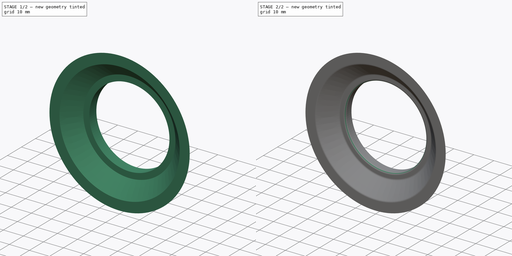
[diagram: build sequence overview — one tinted view per stage of 2, left to right]
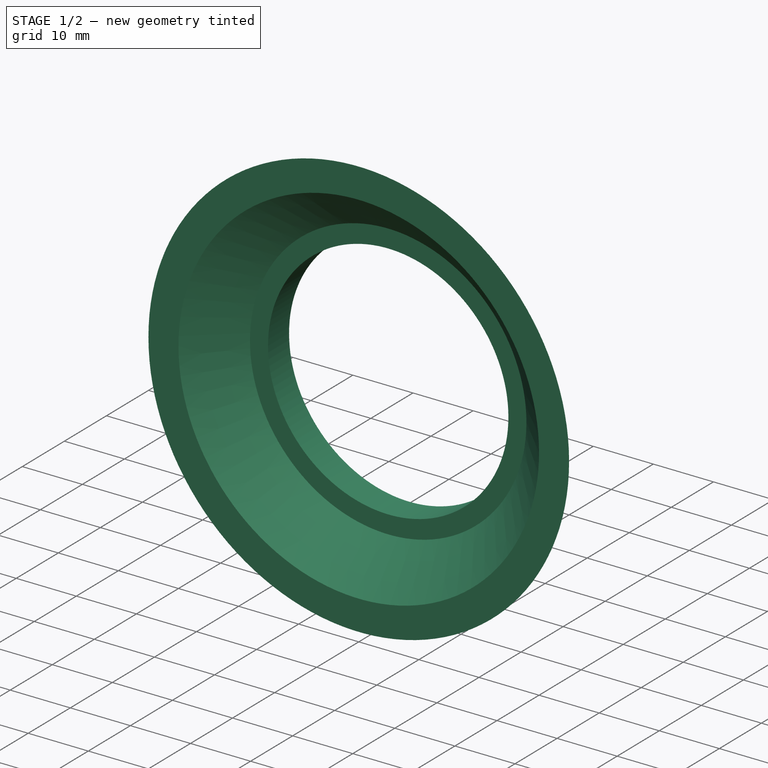
[diagram: stage 1 of 2 — iso view after this stage's code; geometry added in this stage tinted green]
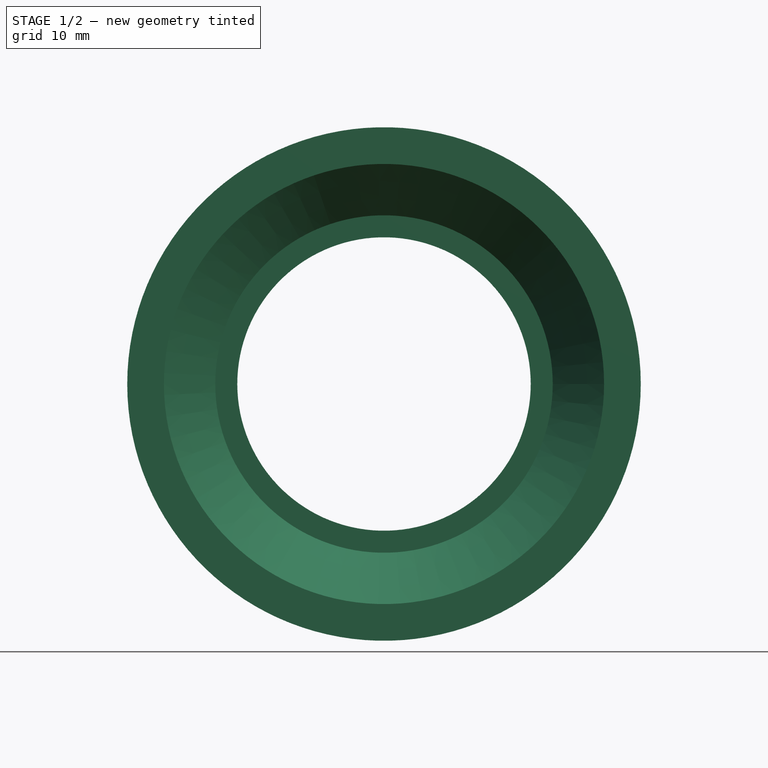
[diagram: stage 1 of 2 — front view after this stage's code; geometry added in this stage tinted green]
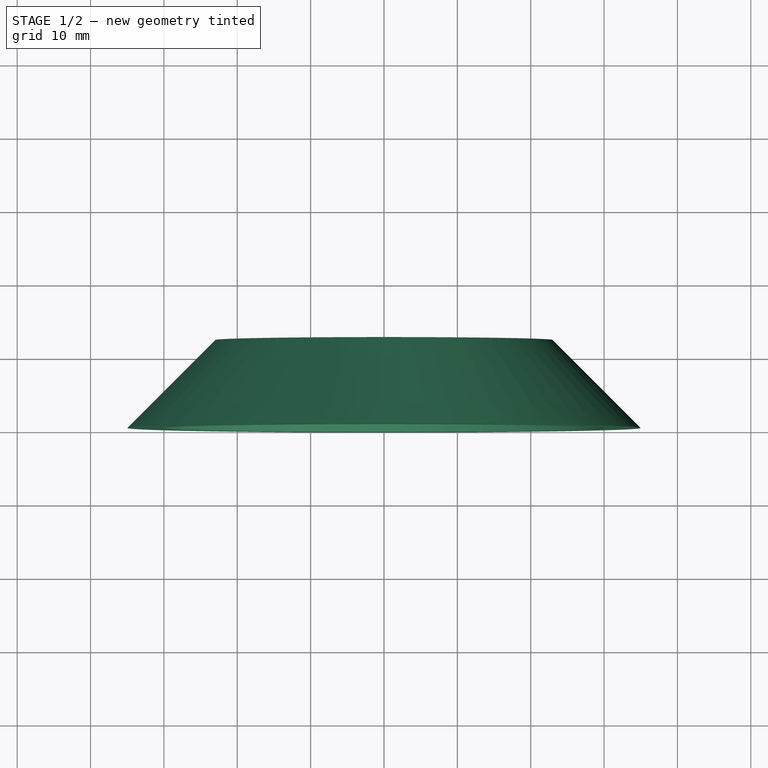
[diagram: stage 1 of 2 — top view after this stage's code; geometry added in this stage tinted green]
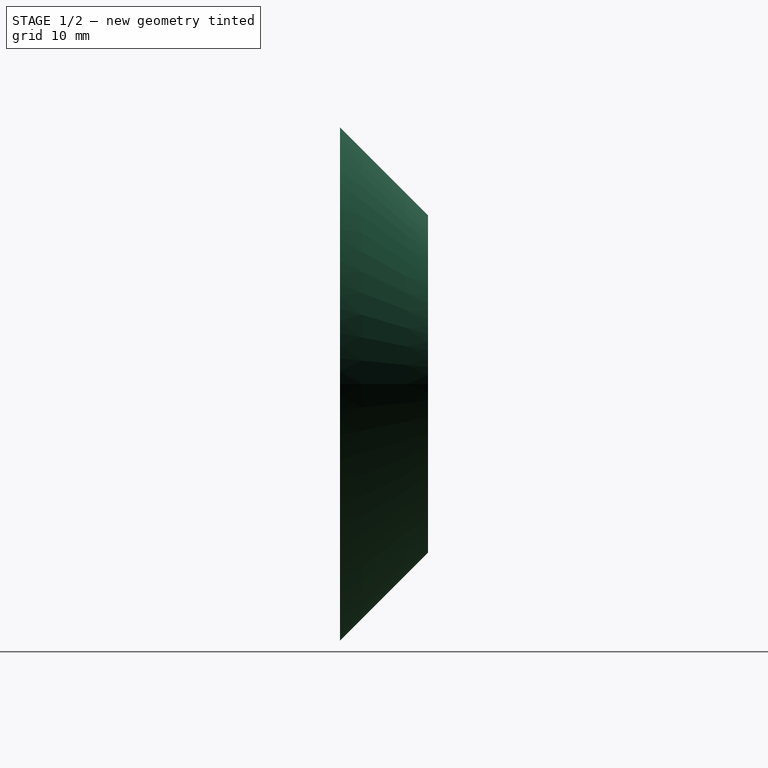
[diagram: stage 1 of 2 — right view after this stage's code; geometry added in this stage tinted green]
FCSTD DOCUMENT  (FreeCAD 0.16RUnknown)
Label: rain_cover_tube
License: All rights reserved
LicenseURL: http://en.wikipedia.org/wiki/All_rights_reserved
objects: Sketcher::SketchObject×1, PartDesign::Revolution×1, PartDesign::Fillet×1
note: 4 computed .brp shape members not serialized (recipe doc carries the construction recipe); baked Part::Feature solids carry a one-line shape summary decoded from their .brp

FEATURE [Sketcher::SketchObject] Sketch
  sketch-geometry (6):
    g0: LineSegment StartX=20 StartY=7 StartZ=0 EndX=23 EndY=7 EndZ=0
    g1: LineSegment StartX=23 StartY=7 StartZ=0 EndX=30 EndY=0 EndZ=0
    g2: LineSegment StartX=35 StartY=0 StartZ=0 EndX=23 EndY=12 EndZ=0
    g3: LineSegment StartX=23 StartY=12 StartZ=0 EndX=20 EndY=12 EndZ=0
    g4: LineSegment StartX=20 StartY=12 StartZ=0 EndX=20 EndY=7 EndZ=0
    g5: LineSegment StartX=35 StartY=0 StartZ=0 EndX=30 EndY=0 EndZ=0
  constraints (18):
    c: Horizontal(g0)
    c: Coincident(g0,g1)
    c: Coincident(g2,g3)
    c: Horizontal(g3)
    c: Coincident(g3,g4)
    c: Coincident(g4,g0)
    c: Vertical(g4)
    c: Parallel(g1,g2)
    c: DistanceX(g-1,g3) = 20
    c: Angle(g3,g2) = 2.35619
    c: DistanceY(g4,g4) = 5
    c: DistanceY(g-1,g3) = 12
    c: Coincident(g5,g2)
    c: Coincident(g5,g1)
    c: Horizontal(g5)
    c: DistanceX(g5,g5) = 5
    c: PointOnObject(g2,g-1)
    c: DistanceX(g-1,g2) = 35
FEATURE [PartDesign::Revolution] Revolution
  Angle = 360
  Axis = (0,1,0)
  Base = (0,0,0)
  ReferenceAxis = -> Sketch [V_Axis]
  Reversed = true
  Sketch = -> Sketch
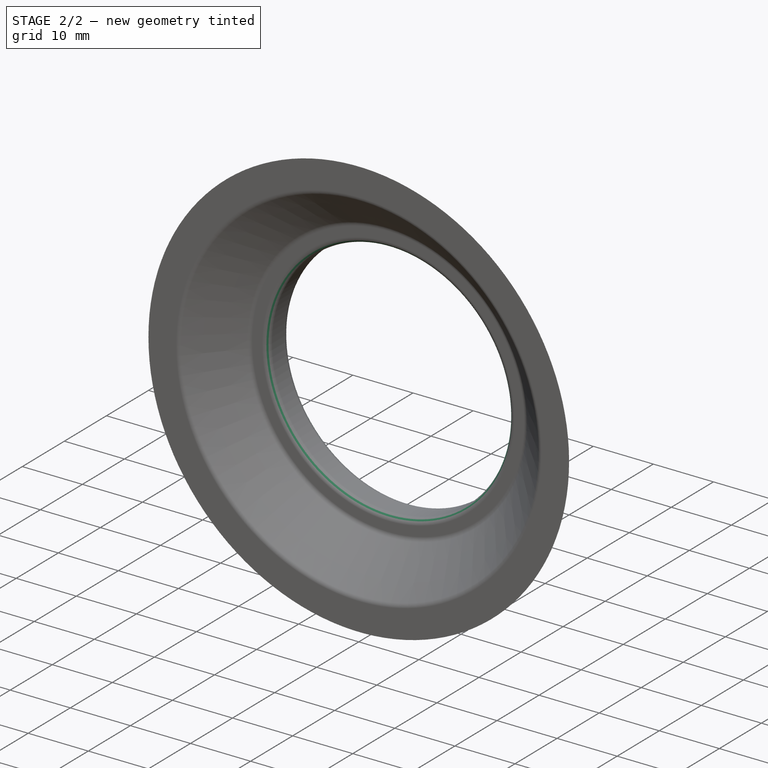
[diagram: stage 2 of 2 — iso view after this stage's code; geometry added in this stage tinted green]
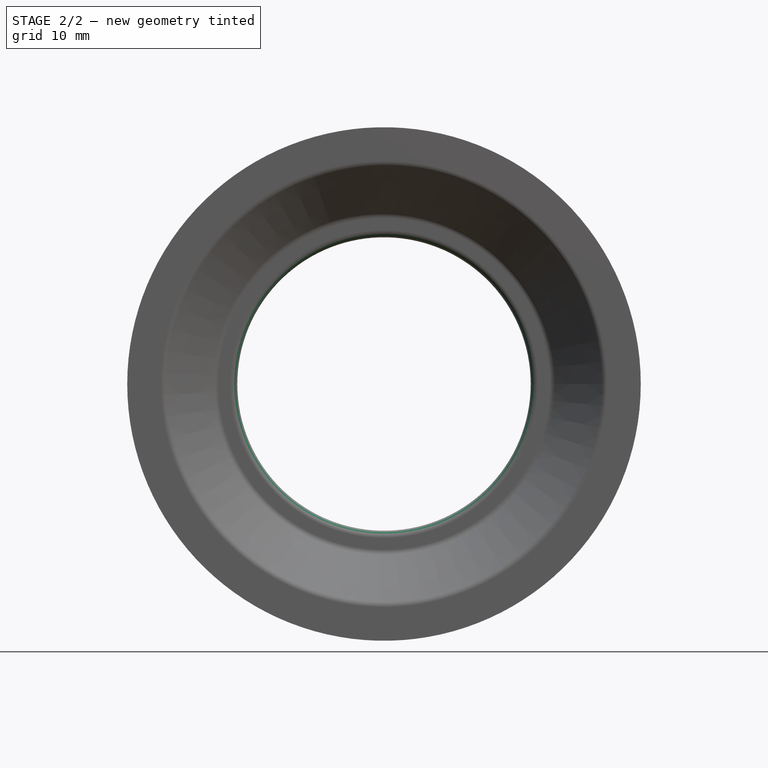
[diagram: stage 2 of 2 — front view after this stage's code; geometry added in this stage tinted green]
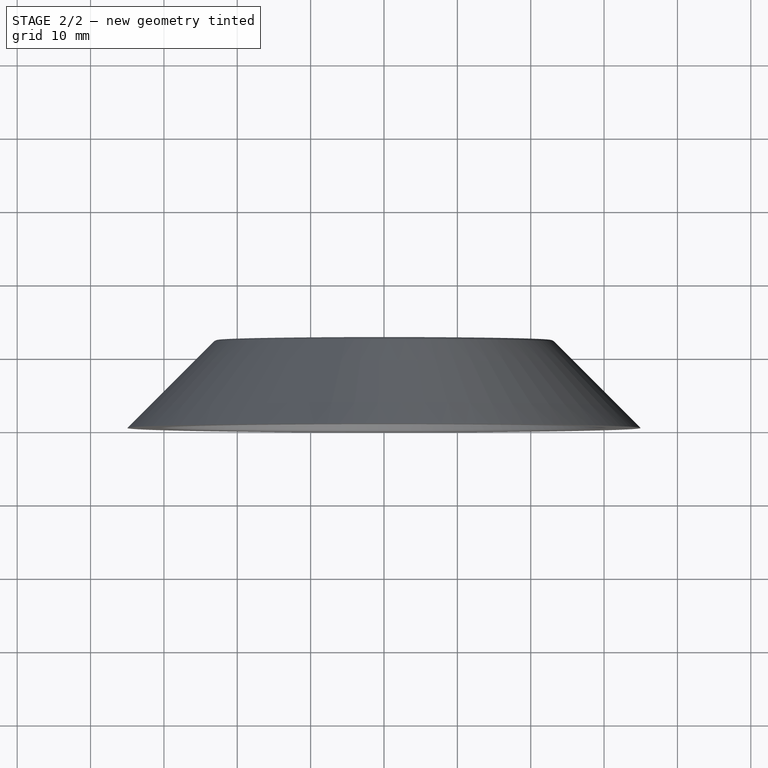
[diagram: stage 2 of 2 — top view after this stage's code; geometry added in this stage tinted green]
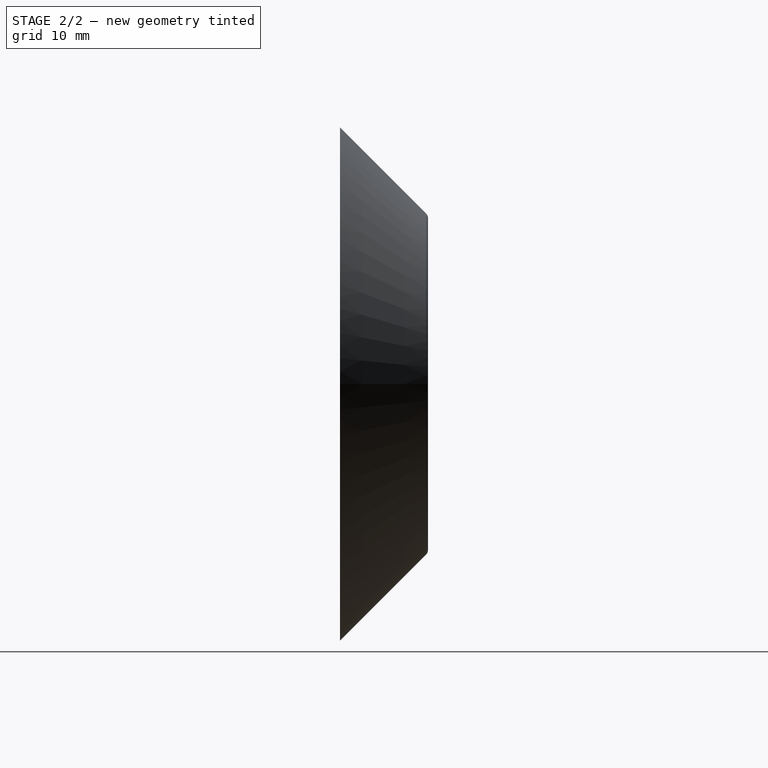
[diagram: stage 2 of 2 — right view after this stage's code; geometry added in this stage tinted green]
FEATURE [PartDesign::Fillet] Fillet
  Base = -> Revolution [Edge8,Edge7,Edge5,Edge2,Edge4]
  Radius = 1
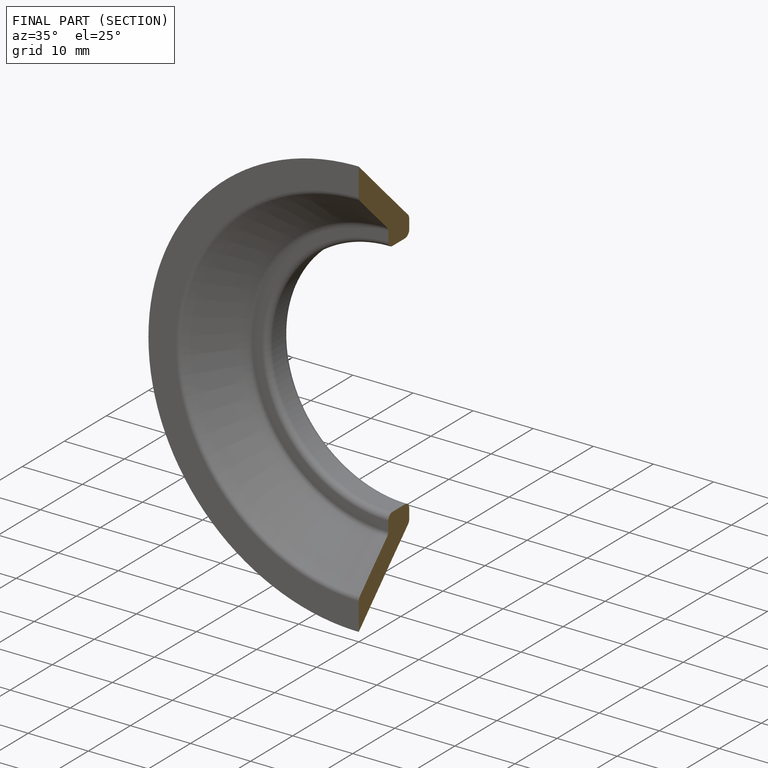
[diagram: finished part — half-section view (interior)]
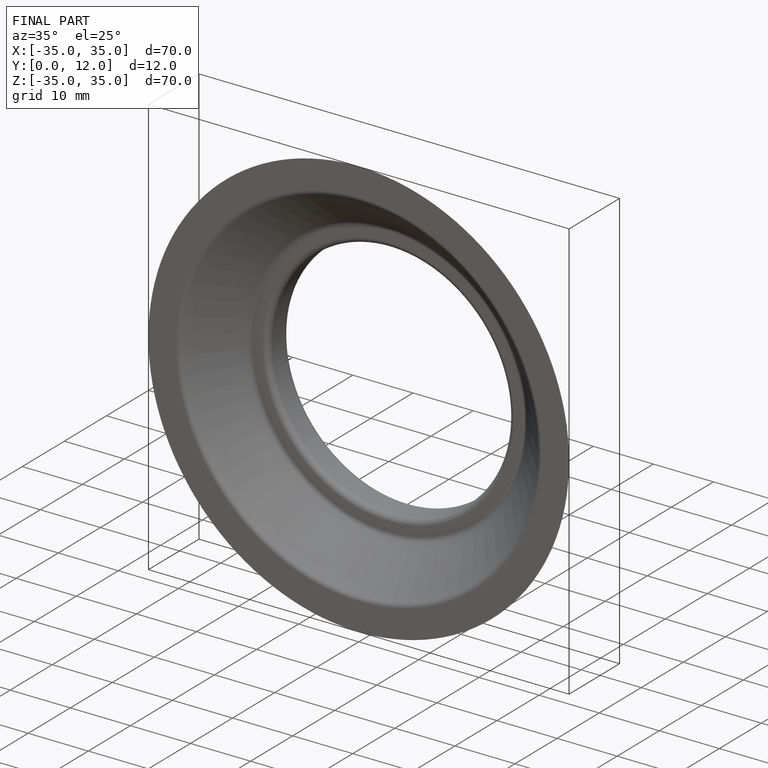
[diagram: finished part — iso view with bounding-box wireframe]
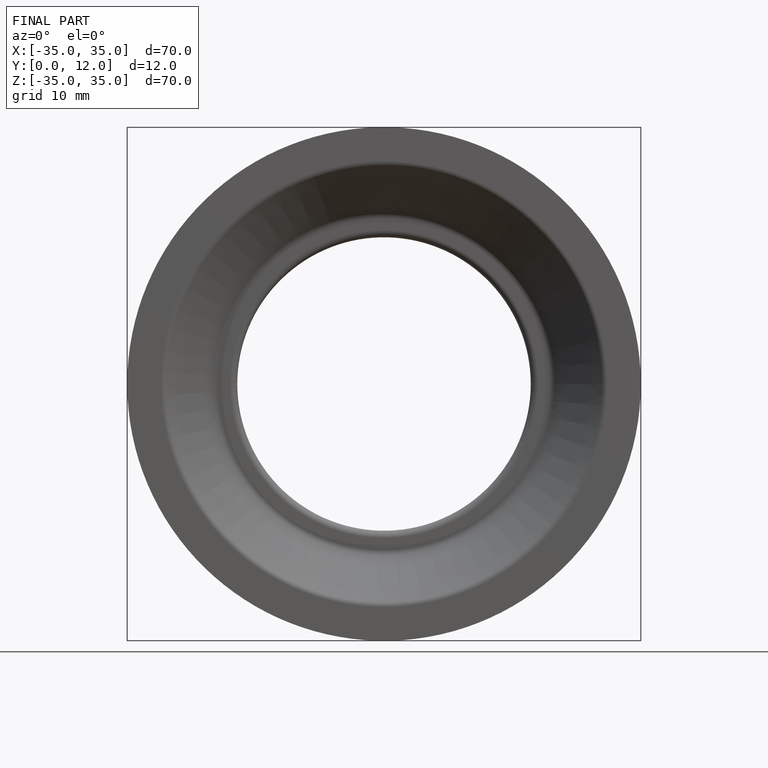
[diagram: finished part — front view with bounding-box wireframe]
